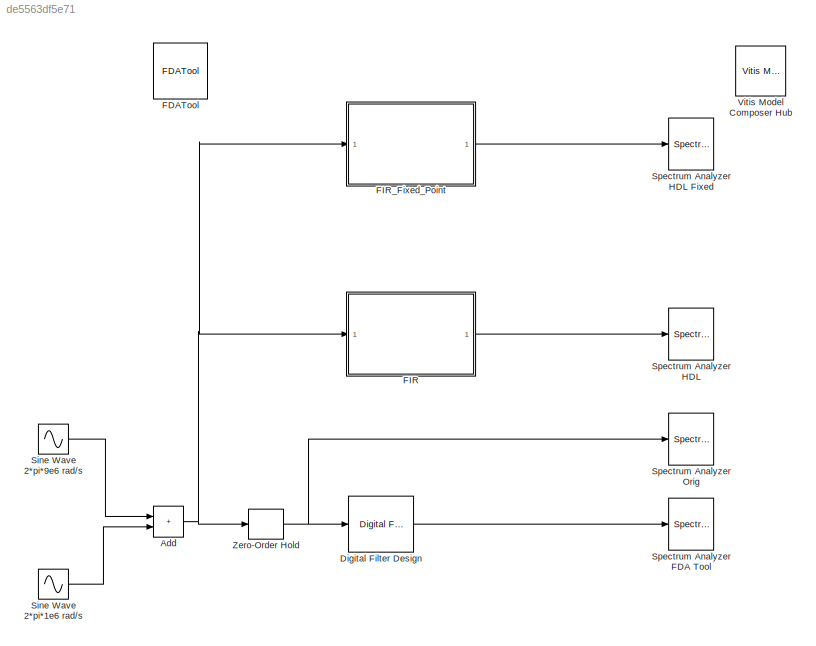
MODEL slx_de5563df5e71
KIND model
CONFIG AbsTol = auto
CONFIG EnableMultiTasking = on
CONFIG FixedStep = auto
CONFIG MaxStep = auto
CONFIG MinStep = auto
CONFIG RelTol = 1e-3
CONFIG SampleTimeConstraint = Unconstrained
CONFIG SolverName = ode45
CONFIG StartTime = 0.0
CONFIG StopTime = 10000/20e6
BLOCK [Sum] Add
  IconShape = rectangular
BLOCK [Reference] Digital Filter Design  REF=dspfdesign/Digital
Filter Design
  SourceBlock = dspfdesign/Digital\nFilter Design
  SourceType = Digital Filter Design
  UserDataPersistent = on
BLOCK [Reference] FDATool  REF=hdlUtilities/FDATool
  SourceBlock = hdlUtilities/FDATool
  SourceType = Xilinx FDATool Interface Block
  UserDataPersistent = on
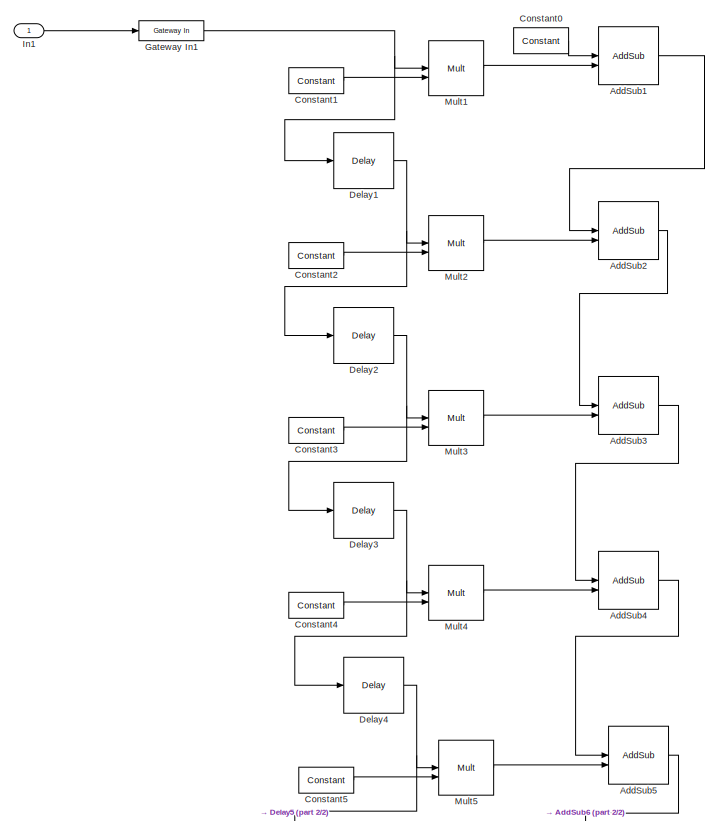
[diagram: FIR - part 1/2, full width, top band]
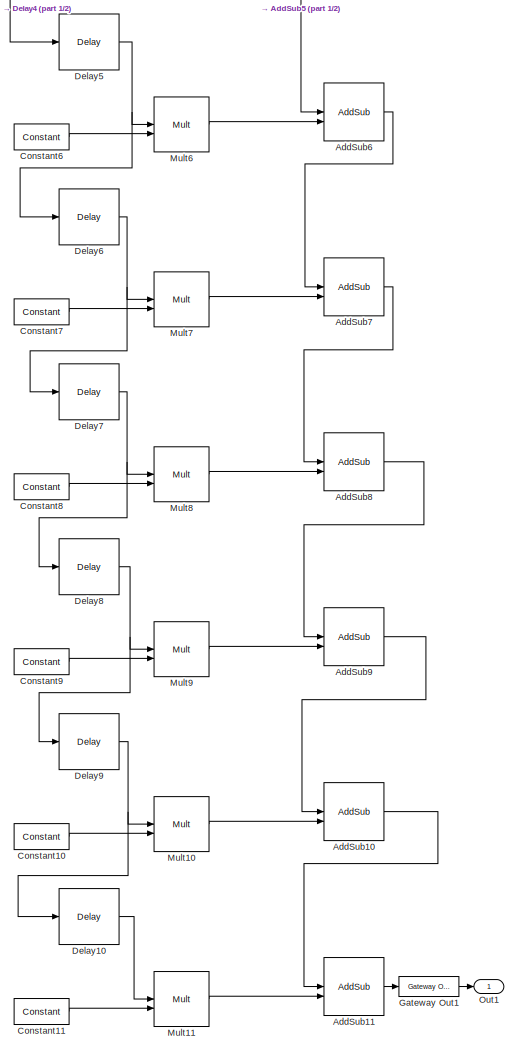
[diagram: FIR - part 2/2, bottom right region]
BLOCK [SubSystem] FIR
BLOCK [Reference] FIR/AddSub1  REF=hdlBasic/AddSub
  SourceBlock = hdlBasic/AddSub
  SourceType = Adder/Subtracter Block
BLOCK [Reference] FIR/AddSub10  REF=hdlBasic/AddSub
  SourceBlock = hdlBasic/AddSub
  SourceType = Adder/Subtracter Block
BLOCK [Reference] FIR/AddSub11  REF=hdlBasic/AddSub
  SourceBlock = hdlBasic/AddSub
  SourceType = Adder/Subtracter Block
BLOCK [Reference] FIR/AddSub2  REF=hdlBasic/AddSub
  SourceBlock = hdlBasic/AddSub
  SourceType = Adder/Subtracter Block
BLOCK [Reference] FIR/AddSub3  REF=hdlBasic/AddSub
  SourceBlock = hdlBasic/AddSub
  SourceType = Adder/Subtracter Block
BLOCK [Reference] FIR/AddSub4  REF=hdlBasic/AddSub
  SourceBlock = hdlBasic/AddSub
  SourceType = Adder/Subtracter Block
BLOCK [Reference] FIR/AddSub5  REF=hdlBasic/AddSub
  SourceBlock = hdlBasic/AddSub
  SourceType = Adder/Subtracter Block
BLOCK [Reference] FIR/AddSub6  REF=hdlBasic/AddSub
  SourceBlock = hdlBasic/AddSub
  SourceType = Adder/Subtracter Block
BLOCK [Reference] FIR/AddSub7  REF=hdlBasic/AddSub
  SourceBlock = hdlBasic/AddSub
  SourceType = Adder/Subtracter Block
BLOCK [Reference] FIR/AddSub8  REF=hdlBasic/AddSub
  SourceBlock = hdlBasic/AddSub
  SourceType = Adder/Subtracter Block
BLOCK [Reference] FIR/AddSub9  REF=hdlBasic/AddSub
  SourceBlock = hdlBasic/AddSub
  SourceType = Adder/Subtracter Block
BLOCK [Reference] FIR/Constant0  REF=hdlBasic/Constant
  SourceBlock = hdlBasic/Constant
  SourceType = Constant Block Block
BLOCK [Reference] FIR/Constant1   REF=hdlBasic/Constant
  SourceBlock = hdlBasic/Constant
  SourceType = Constant Block Block
BLOCK [Reference] FIR/Constant10  REF=hdlBasic/Constant
  SourceBlock = hdlBasic/Constant
  SourceType = Constant Block Block
BLOCK [Reference] FIR/Constant11  REF=hdlBasic/Constant
  SourceBlock = hdlBasic/Constant
  SourceType = Constant Block Block
BLOCK [Reference] FIR/Constant2   REF=hdlBasic/Constant
  SourceBlock = hdlBasic/Constant
  SourceType = Constant Block Block
BLOCK [Reference] FIR/Constant3  REF=hdlBasic/Constant
  SourceBlock = hdlBasic/Constant
  SourceType = Constant Block Block
BLOCK [Reference] FIR/Constant4  REF=hdlBasic/Constant
  SourceBlock = hdlBasic/Constant
  SourceType = Constant Block Block
BLOCK [Reference] FIR/Constant5  REF=hdlBasic/Constant
  SourceBlock = hdlBasic/Constant
  SourceType = Constant Block Block
BLOCK [Reference] FIR/Constant6  REF=hdlBasic/Constant
  SourceBlock = hdlBasic/Constant
  SourceType = Constant Block Block
BLOCK [Reference] FIR/Constant7  REF=hdlBasic/Constant
  SourceBlock = hdlBasic/Constant
  SourceType = Constant Block Block
BLOCK [Reference] FIR/Constant8  REF=hdlBasic/Constant
  SourceBlock = hdlBasic/Constant
  SourceType = Constant Block Block
BLOCK [Reference] FIR/Constant9  REF=hdlBasic/Constant
  SourceBlock = hdlBasic/Constant
  SourceType = Constant Block Block
BLOCK [Reference] FIR/Delay1  REF=hdlBasic/Delay
  SourceBlock = hdlBasic/Delay
  SourceType = Delay Block
BLOCK [Reference] FIR/Delay10  REF=hdlBasic/Delay
  SourceBlock = hdlBasic/Delay
  SourceType = Delay Block
BLOCK [Reference] FIR/Delay2  REF=hdlBasic/Delay
  SourceBlock = hdlBasic/Delay
  SourceType = Delay Block
BLOCK [Reference] FIR/Delay3  REF=hdlBasic/Delay
  SourceBlock = hdlBasic/Delay
  SourceType = Delay Block
BLOCK [Reference] FIR/Delay4  REF=hdlBasic/Delay
  SourceBlock = hdlBasic/Delay
  SourceType = Delay Block
BLOCK [Reference] FIR/Delay5  REF=hdlBasic/Delay
  SourceBlock = hdlBasic/Delay
  SourceType = Delay Block
BLOCK [Reference] FIR/Delay6  REF=hdlBasic/Delay
  SourceBlock = hdlBasic/Delay
  SourceType = Delay Block
BLOCK [Reference] FIR/Delay7  REF=hdlBasic/Delay
  SourceBlock = hdlBasic/Delay
  SourceType = Delay Block
BLOCK [Reference] FIR/Delay8  REF=hdlBasic/Delay
  SourceBlock = hdlBasic/Delay
  SourceType = Delay Block
BLOCK [Reference] FIR/Delay9  REF=hdlBasic/Delay
  SourceBlock = hdlBasic/Delay
  SourceType = Delay Block
BLOCK [Reference] FIR/Gateway In1  REF=hdlBasic/Gateway In
  SourceBlock = hdlBasic/Gateway In
  SourceType = Gateway In Block
BLOCK [Reference] FIR/Gateway Out1  REF=hdlBasic/Gateway Out
  SourceBlock = hdlBasic/Gateway Out
  SourceType = Gateway Out Block
BLOCK [Inport] FIR/In1
BLOCK [Reference] FIR/Mult1  REF=hdlBasic/Mult
  SourceBlock = hdlBasic/Mult
  SourceType = Multiplier Block
BLOCK [Reference] FIR/Mult10  REF=hdlBasic/Mult
  SourceBlock = hdlBasic/Mult
  SourceType = Multiplier Block
BLOCK [Reference] FIR/Mult11  REF=hdlBasic/Mult
  SourceBlock = hdlBasic/Mult
  SourceType = Multiplier Block
BLOCK [Reference] FIR/Mult2  REF=hdlBasic/Mult
  SourceBlock = hdlBasic/Mult
  SourceType = Multiplier Block
BLOCK [Reference] FIR/Mult3  REF=hdlBasic/Mult
  SourceBlock = hdlBasic/Mult
  SourceType = Multiplier Block
BLOCK [Reference] FIR/Mult4  REF=hdlBasic/Mult
  SourceBlock = hdlBasic/Mult
  SourceType = Multiplier Block
BLOCK [Reference] FIR/Mult5  REF=hdlBasic/Mult
  SourceBlock = hdlBasic/Mult
  SourceType = Multiplier Block
BLOCK [Reference] FIR/Mult6  REF=hdlBasic/Mult
  SourceBlock = hdlBasic/Mult
  SourceType = Multiplier Block
BLOCK [Reference] FIR/Mult7  REF=hdlBasic/Mult
  SourceBlock = hdlBasic/Mult
  SourceType = Multiplier Block
BLOCK [Reference] FIR/Mult8  REF=hdlBasic/Mult
  SourceBlock = hdlBasic/Mult
  SourceType = Multiplier Block
BLOCK [Reference] FIR/Mult9  REF=hdlBasic/Mult
  SourceBlock = hdlBasic/Mult
  SourceType = Multiplier Block
BLOCK [Outport] FIR/Out1
  VectorParamsAs1DForOutWhenUnconnected = off
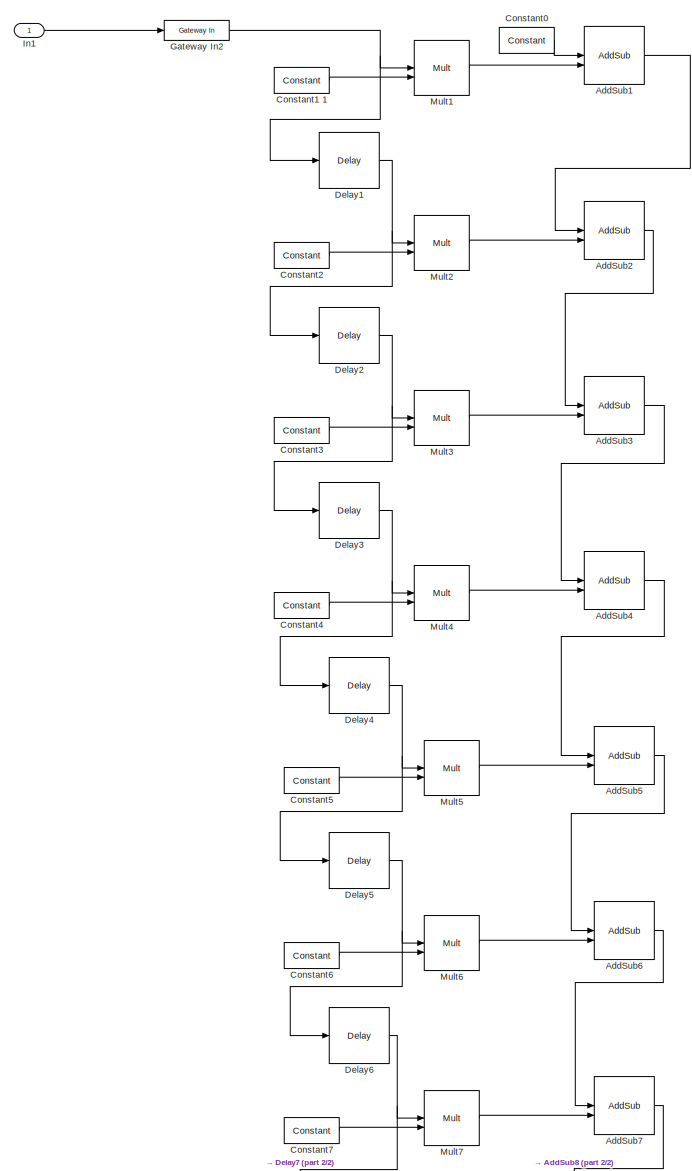
[diagram: FIR_Fixed_Point - part 1/2, top left region]
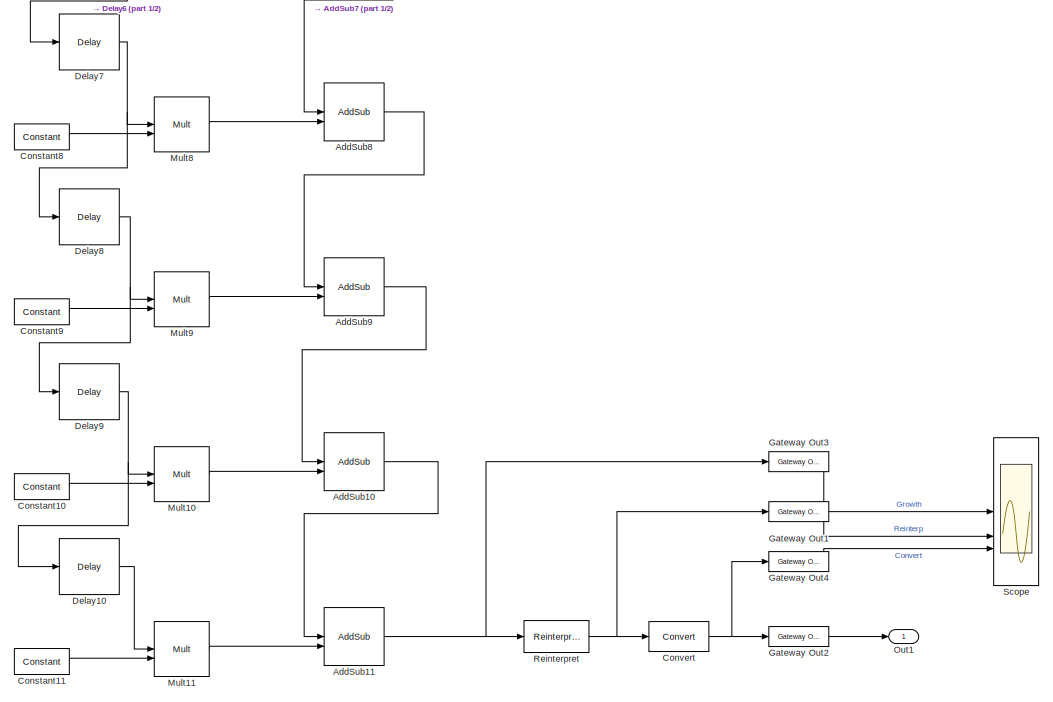
[diagram: FIR_Fixed_Point - part 2/2, full width, bottom band]
BLOCK [SubSystem] FIR_Fixed_Point
BLOCK [Reference] FIR_Fixed_Point/AddSub1  REF=hdlBasic/AddSub
  SourceBlock = hdlBasic/AddSub
  SourceType = Adder/Subtracter Block
BLOCK [Reference] FIR_Fixed_Point/AddSub10  REF=hdlBasic/AddSub
  SourceBlock = hdlBasic/AddSub
  SourceType = Adder/Subtracter Block
BLOCK [Reference] FIR_Fixed_Point/AddSub11  REF=hdlBasic/AddSub
  SourceBlock = hdlBasic/AddSub
  SourceType = Adder/Subtracter Block
BLOCK [Reference] FIR_Fixed_Point/AddSub2  REF=hdlBasic/AddSub
  SourceBlock = hdlBasic/AddSub
  SourceType = Adder/Subtracter Block
BLOCK [Reference] FIR_Fixed_Point/AddSub3  REF=hdlBasic/AddSub
  SourceBlock = hdlBasic/AddSub
  SourceType = Adder/Subtracter Block
BLOCK [Reference] FIR_Fixed_Point/AddSub4  REF=hdlBasic/AddSub
  SourceBlock = hdlBasic/AddSub
  SourceType = Adder/Subtracter Block
BLOCK [Reference] FIR_Fixed_Point/AddSub5  REF=hdlBasic/AddSub
  SourceBlock = hdlBasic/AddSub
  SourceType = Adder/Subtracter Block
BLOCK [Reference] FIR_Fixed_Point/AddSub6  REF=hdlBasic/AddSub
  SourceBlock = hdlBasic/AddSub
  SourceType = Adder/Subtracter Block
BLOCK [Reference] FIR_Fixed_Point/AddSub7  REF=hdlBasic/AddSub
  SourceBlock = hdlBasic/AddSub
  SourceType = Adder/Subtracter Block
BLOCK [Reference] FIR_Fixed_Point/AddSub8  REF=hdlBasic/AddSub
  SourceBlock = hdlBasic/AddSub
  SourceType = Adder/Subtracter Block
BLOCK [Reference] FIR_Fixed_Point/AddSub9  REF=hdlBasic/AddSub
  SourceBlock = hdlBasic/AddSub
  SourceType = Adder/Subtracter Block
BLOCK [Reference] FIR_Fixed_Point/Constant0  REF=hdlBasic/Constant
  SourceBlock = hdlBasic/Constant
  SourceType = Constant Block Block
BLOCK [Reference] FIR_Fixed_Point/Constant1 1  REF=hdlBasic/Constant
  SourceBlock = hdlBasic/Constant
  SourceType = Constant Block Block
BLOCK [Reference] FIR_Fixed_Point/Constant10  REF=hdlBasic/Constant
  SourceBlock = hdlBasic/Constant
  SourceType = Constant Block Block
BLOCK [Reference] FIR_Fixed_Point/Constant11  REF=hdlBasic/Constant
  SourceBlock = hdlBasic/Constant
  SourceType = Constant Block Block
BLOCK [Reference] FIR_Fixed_Point/Constant2   REF=hdlBasic/Constant
  SourceBlock = hdlBasic/Constant
  SourceType = Constant Block Block
BLOCK [Reference] FIR_Fixed_Point/Constant3  REF=hdlBasic/Constant
  SourceBlock = hdlBasic/Constant
  SourceType = Constant Block Block
BLOCK [Reference] FIR_Fixed_Point/Constant4  REF=hdlBasic/Constant
  SourceBlock = hdlBasic/Constant
  SourceType = Constant Block Block
BLOCK [Reference] FIR_Fixed_Point/Constant5  REF=hdlBasic/Constant
  SourceBlock = hdlBasic/Constant
  SourceType = Constant Block Block
BLOCK [Reference] FIR_Fixed_Point/Constant6  REF=hdlBasic/Constant
  SourceBlock = hdlBasic/Constant
  SourceType = Constant Block Block
BLOCK [Reference] FIR_Fixed_Point/Constant7  REF=hdlBasic/Constant
  SourceBlock = hdlBasic/Constant
  SourceType = Constant Block Block
BLOCK [Reference] FIR_Fixed_Point/Constant8  REF=hdlBasic/Constant
  SourceBlock = hdlBasic/Constant
  SourceType = Constant Block Block
BLOCK [Reference] FIR_Fixed_Point/Constant9  REF=hdlBasic/Constant
  SourceBlock = hdlBasic/Constant
  SourceType = Constant Block Block
BLOCK [Reference] FIR_Fixed_Point/Convert  REF=hdlBasic/Convert
  SourceBlock = hdlBasic/Convert
  SourceType = Type Converter Block
BLOCK [Reference] FIR_Fixed_Point/Delay1  REF=hdlBasic/Delay
  SourceBlock = hdlBasic/Delay
  SourceType = Delay Block
BLOCK [Reference] FIR_Fixed_Point/Delay10  REF=hdlBasic/Delay
  SourceBlock = hdlBasic/Delay
  SourceType = Delay Block
BLOCK [Reference] FIR_Fixed_Point/Delay2  REF=hdlBasic/Delay
  SourceBlock = hdlBasic/Delay
  SourceType = Delay Block
BLOCK [Reference] FIR_Fixed_Point/Delay3  REF=hdlBasic/Delay
  SourceBlock = hdlBasic/Delay
  SourceType = Delay Block
BLOCK [Reference] FIR_Fixed_Point/Delay4  REF=hdlBasic/Delay
  SourceBlock = hdlBasic/Delay
  SourceType = Delay Block
BLOCK [Reference] FIR_Fixed_Point/Delay5  REF=hdlBasic/Delay
  SourceBlock = hdlBasic/Delay
  SourceType = Delay Block
BLOCK [Reference] FIR_Fixed_Point/Delay6  REF=hdlBasic/Delay
  SourceBlock = hdlBasic/Delay
  SourceType = Delay Block
BLOCK [Reference] FIR_Fixed_Point/Delay7  REF=hdlBasic/Delay
  SourceBlock = hdlBasic/Delay
  SourceType = Delay Block
BLOCK [Reference] FIR_Fixed_Point/Delay8  REF=hdlBasic/Delay
  SourceBlock = hdlBasic/Delay
  SourceType = Delay Block
BLOCK [Reference] FIR_Fixed_Point/Delay9  REF=hdlBasic/Delay
  SourceBlock = hdlBasic/Delay
  SourceType = Delay Block
BLOCK [Reference] FIR_Fixed_Point/Gateway In2  REF=hdlBasic/Gateway In
  SourceBlock = hdlBasic/Gateway In
  SourceType = Gateway In Block
BLOCK [Reference] FIR_Fixed_Point/Gateway Out1  REF=hdlBasic/Gateway Out
  SourceBlock = hdlBasic/Gateway Out
  SourceType = Gateway Out Block
BLOCK [Reference] FIR_Fixed_Point/Gateway Out2  REF=hdlBasic/Gateway Out
  SourceBlock = hdlBasic/Gateway Out
  SourceType = Gateway Out Block
BLOCK [Reference] FIR_Fixed_Point/Gateway Out3  REF=hdlBasic/Gateway Out
  SourceBlock = hdlBasic/Gateway Out
  SourceType = Gateway Out Block
BLOCK [Reference] FIR_Fixed_Point/Gateway Out4  REF=hdlBasic/Gateway Out
  SourceBlock = hdlBasic/Gateway Out
  SourceType = Gateway Out Block
BLOCK [Inport] FIR_Fixed_Point/In1
BLOCK [Reference] FIR_Fixed_Point/Mult1  REF=hdlBasic/Mult
  SourceBlock = hdlBasic/Mult
  SourceType = Multiplier Block
BLOCK [Reference] FIR_Fixed_Point/Mult10  REF=hdlBasic/Mult
  SourceBlock = hdlBasic/Mult
  SourceType = Multiplier Block
BLOCK [Reference] FIR_Fixed_Point/Mult11  REF=hdlBasic/Mult
  SourceBlock = hdlBasic/Mult
  SourceType = Multiplier Block
BLOCK [Reference] FIR_Fixed_Point/Mult2  REF=hdlBasic/Mult
  SourceBlock = hdlBasic/Mult
  SourceType = Multiplier Block
BLOCK [Reference] FIR_Fixed_Point/Mult3  REF=hdlBasic/Mult
  SourceBlock = hdlBasic/Mult
  SourceType = Multiplier Block
BLOCK [Reference] FIR_Fixed_Point/Mult4  REF=hdlBasic/Mult
  SourceBlock = hdlBasic/Mult
  SourceType = Multiplier Block
BLOCK [Reference] FIR_Fixed_Point/Mult5  REF=hdlBasic/Mult
  SourceBlock = hdlBasic/Mult
  SourceType = Multiplier Block
BLOCK [Reference] FIR_Fixed_Point/Mult6  REF=hdlBasic/Mult
  SourceBlock = hdlBasic/Mult
  SourceType = Multiplier Block
BLOCK [Reference] FIR_Fixed_Point/Mult7  REF=hdlBasic/Mult
  SourceBlock = hdlBasic/Mult
  SourceType = Multiplier Block
BLOCK [Reference] FIR_Fixed_Point/Mult8  REF=hdlBasic/Mult
  SourceBlock = hdlBasic/Mult
  SourceType = Multiplier Block
BLOCK [Reference] FIR_Fixed_Point/Mult9  REF=hdlBasic/Mult
  SourceBlock = hdlBasic/Mult
  SourceType = Multiplier Block
BLOCK [Outport] FIR_Fixed_Point/Out1
  VectorParamsAs1DForOutWhenUnconnected = off
BLOCK [Reference] FIR_Fixed_Point/Reinterpret  REF=hdlBasic/Reinterpret
  SourceBlock = hdlBasic/Reinterpret
  SourceType = Type Reinterpreter Block
BLOCK [Scope] FIR_Fixed_Point/Scope
  Floating = off
  NumInputPorts = 3
  ScopeSpecificationString = Simulink.scopes.TimeScopeBlockCfg('CurrentConfiguration', extmgr.ConfigurationSet(extmgr.Configuration('Core','General UI',true,'DisplayFullSourceName',false,'ShowMainToolbar',true),extmgr.Configuration('Sources','WiredSimulink',true,'DataLogging',false,'DataLoggingVariableName','ScopeData','DataLoggingLimitDataPoints',false,'DataLoggingMaxPoints','5000','DataLoggingDecimateData',false,'DataLoggin...<+3582ch>
BLOCK [Sin] Sine Wave 2*pi*1e6 rad//s
  Frequency = 2*pi*1e6
  SampleTime = 0
BLOCK [Sin] Sine Wave 2*pi*9e6 rad//s
  Frequency = 2*pi*9e6
  SampleTime = 0
BLOCK [SpectrumAnalyzer] Spectrum Analyzer FDA Tool
  AllowFFTLengthLessThanSamplesPerUpdate = on
  AveragingMethod = Exponential
  ChannelNames = [""]
  DefaultConfigurationName = spbscopes.SpectrumAnalyzerBlockCfg
  GraphicalSettings = {"GraphicalSettings":{"SpectralMask":{"CustomReferenceLevel":"0","EnabledMasks":"None","LowerMask":"-Inf","MaskFrequencyOffset":"0","ReferenceLevel":"Custom","SelectedChannel":"1","UpperMask":"Inf"},"Style":{"AxesColor":"[0 0 0]","DefaultMarker":"none","DisplayName":"","LabelsColor":"[0.686274509803922 0.686274509803922 0.686274509803922]","Line":"1","LineColor":"[[1      0.9098     0.39216]]","Li...<+225ch>  <repeated x4 — deduplicated; at blocks: Spectrum Analyzer FDA Tool, Spectrum Analyzer HDL, Spectrum Analyzer HDL Fixed, Spectrum Analyzer Orig>
  Method = Welch
  SampleRate = 20000000
  ScopeSpecificationString = spbscopes.SpectrumAnalyzerBlockCfg('CurrentConfiguration', extmgr.ConfigurationSet(extmgr.Configuration('Core','General UI',true,'FigureColor',[0.16        0.16        0.16]),extmgr.Configuration('Visuals','Spectrum',true,'Title','','YLabel','','MinYLim','-187.0838','MaxYLim','47.1991','Legend',false,'AxesProperties',struct('XGrid',{'on','on'},'YGrid',{'on','on'},'ZGrid',{'on','on'},'Color',{[0 0 ...<+2332ch>
  WasSavedAsWebScope = on
  WindowPosition = [481 213 576 420]
  YLimits = [-187.0838,47.1991]
BLOCK [SpectrumAnalyzer] Spectrum Analyzer HDL
  AllowFFTLengthLessThanSamplesPerUpdate = on
  AveragingMethod = Exponential
  ChannelNames = [""]
  DefaultConfigurationName = spbscopes.SpectrumAnalyzerBlockCfg
  Method = Welch
  SampleRate = 20000000
  ScopeSpecificationString = spbscopes.SpectrumAnalyzerBlockCfg('CurrentConfiguration', extmgr.ConfigurationSet(extmgr.Configuration('Core','General UI',true,'FigureColor',[0.16        0.16        0.16]),extmgr.Configuration('Visuals','Spectrum',true,'Title','','YLabel','','MinYLim','-196.4873','MaxYLim','48.2439','Legend',false,'AxesProperties',struct('XGrid',{'on','on'},'YGrid',{'on','on'},'ZGrid',{'on','on'},'Color',{[0 0 ...<+2332ch>
  WasSavedAsWebScope = on
  WindowPosition = [489 221 560 420]
  YLimits = [-196.4873,48.2439]
BLOCK [SpectrumAnalyzer] Spectrum Analyzer HDL Fixed
  AllowFFTLengthLessThanSamplesPerUpdate = on
  AveragingMethod = Exponential
  ChannelNames = [""]
  DefaultConfigurationName = spbscopes.SpectrumAnalyzerBlockCfg
  Method = Welch
  SampleRate = 20000000
  ScopeSpecificationString = spbscopes.SpectrumAnalyzerBlockCfg('CurrentConfiguration', extmgr.ConfigurationSet(extmgr.Configuration('Core','General UI',true,'FigureColor',[0.16        0.16        0.16]),extmgr.Configuration('Visuals','Spectrum',true,'Title','','YLabel','','MinYLim','-196.7604','MaxYLim','54.964','Legend',false,'AxesProperties',struct('XGrid',{'on','on'},'YGrid',{'on','on'},'ZGrid',{'on','on'},'Color',{[0 0 0...<+2331ch>
  WasSavedAsWebScope = on
  WindowPosition = [485 217 568 420]
  YLimits = [-196.7604,54.964]
BLOCK [SpectrumAnalyzer] Spectrum Analyzer Orig
  AllowFFTLengthLessThanSamplesPerUpdate = on
  AveragingMethod = Exponential
  ChannelNames = [""]
  DefaultConfigurationName = spbscopes.SpectrumAnalyzerBlockCfg
  Method = Welch
  SampleRate = 20000000
  ScopeSpecificationString = spbscopes.SpectrumAnalyzerBlockCfg('CurrentConfiguration', extmgr.ConfigurationSet(extmgr.Configuration('Core','General UI',true,'FigureColor',[0.16        0.16        0.16]),extmgr.Configuration('Visuals','Spectrum',true,'Title','','YLabel','','MinYLim','-153.2838','MaxYLim','43.4257','Legend',false,'AxesProperties',struct('XGrid',{'on','on'},'YGrid',{'on','on'},'ZGrid',{'on','on'},'Color',{[0 0 ...<+2332ch>
  WasSavedAsWebScope = on
  WindowPosition = [485 217 568 420]
  YLimits = [-153.2838,43.4257]
BLOCK [Reference] Vitis Model Composer Hub  REF=vmcUtilities/Vitis Model Composer Hub
  SourceBlock = vmcUtilities/Vitis Model Composer Hub
  SourceType = VMC Hub
  Tag = genX
  UserDataPersistent = on
BLOCK [ZeroOrderHold] Zero-Order Hold
  SampleTime = 1/20e6
NET Add:1 -> FIR:1, FIR_Fixed_Point:1, Zero-Order Hold:1
LINE Digital Filter Design:1 -> Spectrum Analyzer FDA Tool:1
LINE FIR/AddSub10:1 -> FIR/AddSub11:1
LINE FIR/AddSub11:1 -> FIR/Gateway Out1:1
LINE FIR/AddSub1:1 -> FIR/AddSub2:1
LINE FIR/AddSub2:1 -> FIR/AddSub3:1
LINE FIR/AddSub3:1 -> FIR/AddSub4:1
LINE FIR/AddSub4:1 -> FIR/AddSub5:1
LINE FIR/AddSub5:1 -> FIR/AddSub6:1
LINE FIR/AddSub6:1 -> FIR/AddSub7:1
LINE FIR/AddSub7:1 -> FIR/AddSub8:1
LINE FIR/AddSub8:1 -> FIR/AddSub9:1
LINE FIR/AddSub9:1 -> FIR/AddSub10:1
LINE FIR/Constant0:1 -> FIR/AddSub1:1
LINE FIR/Constant1 :1 -> FIR/Mult1:2
LINE FIR/Constant10:1 -> FIR/Mult10:2
LINE FIR/Constant11:1 -> FIR/Mult11:2
LINE FIR/Constant2 :1 -> FIR/Mult2:2
LINE FIR/Constant3:1 -> FIR/Mult3:2
LINE FIR/Constant4:1 -> FIR/Mult4:2
LINE FIR/Constant5:1 -> FIR/Mult5:2
LINE FIR/Constant6:1 -> FIR/Mult6:2
LINE FIR/Constant7:1 -> FIR/Mult7:2
LINE FIR/Constant8:1 -> FIR/Mult8:2
LINE FIR/Constant9:1 -> FIR/Mult9:2
LINE FIR/Delay10:1 -> FIR/Mult11:1
NET FIR/Delay1:1 -> FIR/Delay2:1, FIR/Mult2:1
NET FIR/Delay2:1 -> FIR/Delay3:1, FIR/Mult3:1
NET FIR/Delay3:1 -> FIR/Delay4:1, FIR/Mult4:1
NET FIR/Delay4:1 -> FIR/Delay5:1, FIR/Mult5:1
NET FIR/Delay5:1 -> FIR/Delay6:1, FIR/Mult6:1
NET FIR/Delay6:1 -> FIR/Delay7:1, FIR/Mult7:1
NET FIR/Delay7:1 -> FIR/Delay8:1, FIR/Mult8:1
NET FIR/Delay8:1 -> FIR/Delay9:1, FIR/Mult9:1
NET FIR/Delay9:1 -> FIR/Delay10:1, FIR/Mult10:1
NET FIR/Gateway In1:1 -> FIR/Delay1:1, FIR/Mult1:1
LINE FIR/Gateway Out1:1 -> FIR/Out1:1
LINE FIR/In1:1 -> FIR/Gateway In1:1
LINE FIR/Mult10:1 -> FIR/AddSub10:2
LINE FIR/Mult11:1 -> FIR/AddSub11:2
LINE FIR/Mult1:1 -> FIR/AddSub1:2
LINE FIR/Mult2:1 -> FIR/AddSub2:2
LINE FIR/Mult3:1 -> FIR/AddSub3:2
LINE FIR/Mult4:1 -> FIR/AddSub4:2
LINE FIR/Mult5:1 -> FIR/AddSub5:2
LINE FIR/Mult6:1 -> FIR/AddSub6:2
LINE FIR/Mult7:1 -> FIR/AddSub7:2
LINE FIR/Mult8:1 -> FIR/AddSub8:2
LINE FIR/Mult9:1 -> FIR/AddSub9:2
LINE FIR:1 -> Spectrum Analyzer HDL:1
LINE FIR_Fixed_Point/AddSub10:1 -> FIR_Fixed_Point/AddSub11:1
NET FIR_Fixed_Point/AddSub11:1 -> FIR_Fixed_Point/Gateway Out3:1, FIR_Fixed_Point/Reinterpret:1
LINE FIR_Fixed_Point/AddSub1:1 -> FIR_Fixed_Point/AddSub2:1
LINE FIR_Fixed_Point/AddSub2:1 -> FIR_Fixed_Point/AddSub3:1
LINE FIR_Fixed_Point/AddSub3:1 -> FIR_Fixed_Point/AddSub4:1
LINE FIR_Fixed_Point/AddSub4:1 -> FIR_Fixed_Point/AddSub5:1
LINE FIR_Fixed_Point/AddSub5:1 -> FIR_Fixed_Point/AddSub6:1
LINE FIR_Fixed_Point/AddSub6:1 -> FIR_Fixed_Point/AddSub7:1
LINE FIR_Fixed_Point/AddSub7:1 -> FIR_Fixed_Point/AddSub8:1
LINE FIR_Fixed_Point/AddSub8:1 -> FIR_Fixed_Point/AddSub9:1
LINE FIR_Fixed_Point/AddSub9:1 -> FIR_Fixed_Point/AddSub10:1
LINE FIR_Fixed_Point/Constant0:1 -> FIR_Fixed_Point/AddSub1:1
LINE FIR_Fixed_Point/Constant1 1:1 -> FIR_Fixed_Point/Mult1:2
LINE FIR_Fixed_Point/Constant10:1 -> FIR_Fixed_Point/Mult10:2
LINE FIR_Fixed_Point/Constant11:1 -> FIR_Fixed_Point/Mult11:2
LINE FIR_Fixed_Point/Constant2 :1 -> FIR_Fixed_Point/Mult2:2
LINE FIR_Fixed_Point/Constant3:1 -> FIR_Fixed_Point/Mult3:2
LINE FIR_Fixed_Point/Constant4:1 -> FIR_Fixed_Point/Mult4:2
LINE FIR_Fixed_Point/Constant5:1 -> FIR_Fixed_Point/Mult5:2
LINE FIR_Fixed_Point/Constant6:1 -> FIR_Fixed_Point/Mult6:2
LINE FIR_Fixed_Point/Constant7:1 -> FIR_Fixed_Point/Mult7:2
LINE FIR_Fixed_Point/Constant8:1 -> FIR_Fixed_Point/Mult8:2
LINE FIR_Fixed_Point/Constant9:1 -> FIR_Fixed_Point/Mult9:2
NET FIR_Fixed_Point/Convert:1 -> FIR_Fixed_Point/Gateway Out2:1, FIR_Fixed_Point/Gateway Out4:1
LINE FIR_Fixed_Point/Delay10:1 -> FIR_Fixed_Point/Mult11:1
NET FIR_Fixed_Point/Delay1:1 -> FIR_Fixed_Point/Delay2:1, FIR_Fixed_Point/Mult2:1
NET FIR_Fixed_Point/Delay2:1 -> FIR_Fixed_Point/Delay3:1, FIR_Fixed_Point/Mult3:1
NET FIR_Fixed_Point/Delay3:1 -> FIR_Fixed_Point/Delay4:1, FIR_Fixed_Point/Mult4:1
NET FIR_Fixed_Point/Delay4:1 -> FIR_Fixed_Point/Delay5:1, FIR_Fixed_Point/Mult5:1
NET FIR_Fixed_Point/Delay5:1 -> FIR_Fixed_Point/Delay6:1, FIR_Fixed_Point/Mult6:1
NET FIR_Fixed_Point/Delay6:1 -> FIR_Fixed_Point/Delay7:1, FIR_Fixed_Point/Mult7:1
NET FIR_Fixed_Point/Delay7:1 -> FIR_Fixed_Point/Delay8:1, FIR_Fixed_Point/Mult8:1
NET FIR_Fixed_Point/Delay8:1 -> FIR_Fixed_Point/Delay9:1, FIR_Fixed_Point/Mult9:1
NET FIR_Fixed_Point/Delay9:1 -> FIR_Fixed_Point/Delay10:1, FIR_Fixed_Point/Mult10:1
NET FIR_Fixed_Point/Gateway In2:1 -> FIR_Fixed_Point/Delay1:1, FIR_Fixed_Point/Mult1:1
LINE FIR_Fixed_Point/Gateway Out1:1 -> FIR_Fixed_Point/Scope:2
LINE FIR_Fixed_Point/Gateway Out2:1 -> FIR_Fixed_Point/Out1:1
LINE FIR_Fixed_Point/Gateway Out3:1 -> FIR_Fixed_Point/Scope:1
LINE FIR_Fixed_Point/Gateway Out4:1 -> FIR_Fixed_Point/Scope:3
LINE FIR_Fixed_Point/In1:1 -> FIR_Fixed_Point/Gateway In2:1
LINE FIR_Fixed_Point/Mult10:1 -> FIR_Fixed_Point/AddSub10:2
LINE FIR_Fixed_Point/Mult11:1 -> FIR_Fixed_Point/AddSub11:2
LINE FIR_Fixed_Point/Mult1:1 -> FIR_Fixed_Point/AddSub1:2
LINE FIR_Fixed_Point/Mult2:1 -> FIR_Fixed_Point/AddSub2:2
LINE FIR_Fixed_Point/Mult3:1 -> FIR_Fixed_Point/AddSub3:2
LINE FIR_Fixed_Point/Mult4:1 -> FIR_Fixed_Point/AddSub4:2
LINE FIR_Fixed_Point/Mult5:1 -> FIR_Fixed_Point/AddSub5:2
LINE FIR_Fixed_Point/Mult6:1 -> FIR_Fixed_Point/AddSub6:2
LINE FIR_Fixed_Point/Mult7:1 -> FIR_Fixed_Point/AddSub7:2
LINE FIR_Fixed_Point/Mult8:1 -> FIR_Fixed_Point/AddSub8:2
LINE FIR_Fixed_Point/Mult9:1 -> FIR_Fixed_Point/AddSub9:2
NET FIR_Fixed_Point/Reinterpret:1 -> FIR_Fixed_Point/Convert:1, FIR_Fixed_Point/Gateway Out1:1
LINE FIR_Fixed_Point:1 -> Spectrum Analyzer HDL Fixed:1
LINE Sine Wave 2*pi*1e6 rad//s:1 -> Add:2
LINE Sine Wave 2*pi*9e6 rad//s:1 -> Add:1
NET Zero-Order Hold:1 -> Digital Filter Design:1, Spectrum Analyzer Orig:1
note: NET lines group one-source signal fan-out (src -> all destinations, sorted); 1:1 wires keep LINE
